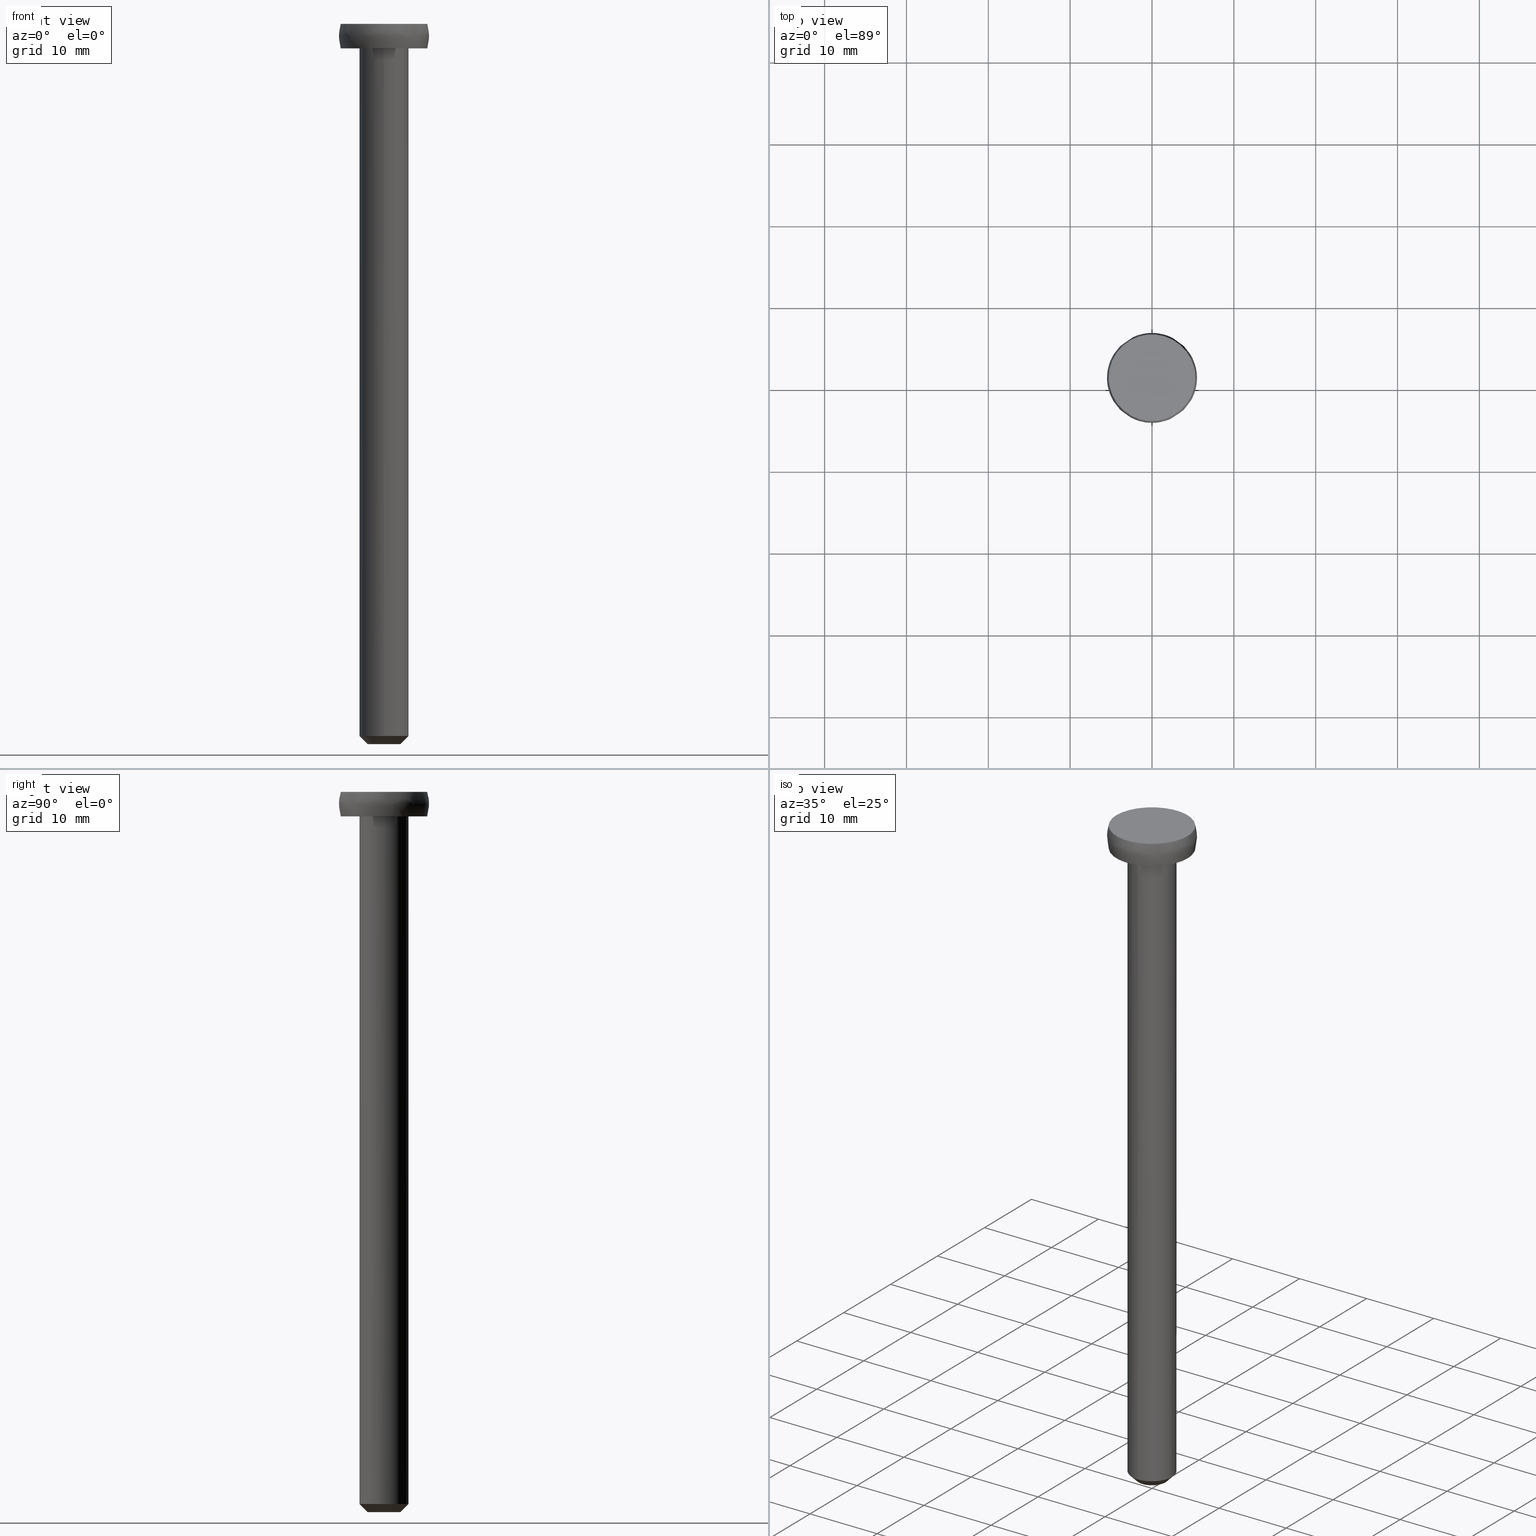
[diagram: canonical four-view strip — front | top / right | iso, engineering-drawing reading convention]
A machine part, canonical four-view strip (front | top / right | iso — engineering-drawing reading convention). The complete STEP part file that produces these views, byte-faithful:
ISO-10303-21;
HEADER;
/****************************************************************
 * Generated by software with PDE/Lib inside                    *
 * PDElib Version 4.4.1-0003, patched  Thursday August 19 11:58 *
 * International Technegroup Inc. (www.iti-oh.com)              *
 ****************************************************************/
FILE_DESCRIPTION((''),'2;1');
FILE_NAME('','2005-04-20T08:41:56',(''),(''),'','CADfix','');
FILE_SCHEMA(('AUTOMOTIVE_DESIGN'));
ENDSEC;
DATA;
#5=APPLICATION_CONTEXT('automotive design');
#6=APPLICATION_PROTOCOL_DEFINITION('Draft International Standard','automotive_design',1998,#5);
#7=PRODUCT_CONTEXT('None',#5,'mechanical');
#8=PRODUCT('shaft','','None',(#7));
#9=PRODUCT_RELATED_PRODUCT_CATEGORY('part','description',(#8));
#10=PRODUCT_DEFINITION_FORMATION('None','None',#8);
#11=PRODUCT_DEFINITION_CONTEXT('part definition',#5,'design');
#12=PRODUCT_DEFINITION('None','None',#10,#11);
#18=(NAMED_UNIT(*)PLANE_ANGLE_UNIT()SI_UNIT($,.RADIAN.));
#19=DIMENSIONAL_EXPONENTS(0.0,0.0,0.0,0.0,0.0,0.0,0.0);
#20=PLANE_ANGLE_MEASURE_WITH_UNIT(PLANE_ANGLE_MEASURE(0.017453292500000),#18);
#24=(CONVERSION_BASED_UNIT('DEGREE',#20)NAMED_UNIT(#19)PLANE_ANGLE_UNIT());
#28=(NAMED_UNIT(*)SI_UNIT($,.STERADIAN.)SOLID_ANGLE_UNIT());
#32=(LENGTH_UNIT()NAMED_UNIT(*)SI_UNIT(.MILLI.,.METRE.));
#34=UNCERTAINTY_MEASURE_WITH_UNIT(LENGTH_MEASURE(0.001000000000000),#32,'DISTANCE_ACCURACY_VALUE','');
#36=(GEOMETRIC_REPRESENTATION_CONTEXT(3)GLOBAL_UNCERTAINTY_ASSIGNED_CONTEXT((#34))GLOBAL_UNIT_ASSIGNED_CONTEXT((#24,#28,#32))REPRESENTATION_CONTEXT('None','None'));
#37=AXIS2_PLACEMENT_3D('',#38,#39,#40);
#38=CARTESIAN_POINT('',(0.0,0.0,0.0));
#39=DIRECTION('',(0.0,0.0,1.0));
#40=DIRECTION('',(1.0,0.0,0.0));
#41=ADVANCED_BREP_SHAPE_REPRESENTATION('',(#37,#544),#36);
#42=PRODUCT_DEFINITION_SHAPE('','',#12);
#43=SHAPE_DEFINITION_REPRESENTATION(#42,#41);
#44=CARTESIAN_POINT('',(-1.924080852527717,0.445575889087603,-0.025000000000000));
#45=CARTESIAN_POINT('',(-1.976970576395369,0.217188071251215,-0.025000000000000));
#46=CARTESIAN_POINT('',(-1.974924798051737,-0.017234907609288,-0.025000000000000));
#47=CARTESIAN_POINT('',(-1.957689890442449,-1.992159705661026,-0.025000000000000));
#48=CARTESIAN_POINT('',(0.017234907609288,-1.974924798051737,-0.025000000000000));
#49=CARTESIAN_POINT('',(1.992159705661026,-1.957689890442449,-0.025000000000000));
#50=CARTESIAN_POINT('',(1.974924798051737,0.017234907609288,-0.025000000000000));
#51=CARTESIAN_POINT('',(1.957689890442449,1.992159705661026,-0.025000000000000));
#52=CARTESIAN_POINT('',(-0.017234907609288,1.974924798051737,-0.025000000000000));
#53=CARTESIAN_POINT('',(-2.947618799710976,0.682605341478825,1.025625000000000));
#54=CARTESIAN_POINT('',(-3.028643848205691,0.332723877508586,1.025625000000000));
#55=CARTESIAN_POINT('',(-3.025509793471032,-0.026403223967268,1.025625000000000));
#56=CARTESIAN_POINT('',(-2.999106569503765,-3.051913017438300,1.025625000000000));
#57=CARTESIAN_POINT('',(0.026403223967268,-3.025509793471032,1.025625000000000));
#58=CARTESIAN_POINT('',(3.051913017438300,-2.999106569503765,1.025625000000000));
#59=CARTESIAN_POINT('',(3.025509793471032,0.026403223967268,1.025625000000000));
#60=CARTESIAN_POINT('',(2.999106569503765,3.051913017438300,1.025625000000000));
#61=CARTESIAN_POINT('',(-0.026403223967268,3.025509793471032,1.025625000000000));
#69=(BOUNDED_SURFACE()B_SPLINE_SURFACE(2,1,((#44,#53),(#45,#54),(#46,#55),(#47,#56),(#48,#57),(#49,#58),(#50,#59),(#51,#60),(#52,#61)),.UNSPECIFIED.,.F.,.F.,.U.)B_SPLINE_SURFACE_WITH_KNOTS((3,2,2,2,3),(2,2),(0.0,0.802083142179262,5.815102780799644,10.828122419420030,15.841142058040409),(0.0,1.0),.UNSPECIFIED.)GEOMETRIC_REPRESENTATION_ITEM()RATIONAL_B_SPLINE_SURFACE(((0.921270302782944,0.921270302782944),(0.953137084989848,0.953137084989848),(1.0,1.0),(0.707106781186548,0.707106781186548),(1.0,1.0),(0.707106781186548,0.707106781186548),(1.0,1.0),(0.707106781186548,0.707106781186548),(1.0,1.0)))REPRESENTATION_ITEM('')SURFACE());
#70=CARTESIAN_POINT('',(-2.922654459458321,0.676824136001583,1.000000000077650));
#71=VERTEX_POINT('',#70);
#72=CARTESIAN_POINT('',(-3.0,0.0,1.0));
#73=VERTEX_POINT('',#72);
#74=CARTESIAN_POINT('',(-2.922654459458320,0.676824136001583,1.000000000077650));
#75=CARTESIAN_POINT('',(-3.0,0.342831482726698,1.0));
#76=CARTESIAN_POINT('',(-3.0,0.0,1.0));
#84=(BOUNDED_CURVE()B_SPLINE_CURVE(2,(#74,#75,#76),.UNSPECIFIED.,.F.,.U.)B_SPLINE_CURVE_WITH_KNOTS((3,3),(0.961422971710747,1.0),.UNSPECIFIED.)CURVE()GEOMETRIC_REPRESENTATION_ITEM()RATIONAL_B_SPLINE_CURVE((0.923556557323127,0.954804200048412,1.0))REPRESENTATION_ITEM(''));
#85=EDGE_CURVE('',#71,#73,#84,.T.);
#86=ORIENTED_EDGE('',*,*,#85,.F.);
#87=CARTESIAN_POINT('',(-1.948436306188818,0.451216091699625,1.708533E-010));
#88=VERTEX_POINT('',#87);
#89=CARTESIAN_POINT('',(-1.948436306188818,0.451216091699625,1.708533E-010));
#90=CARTESIAN_POINT('',(-2.922654459458321,0.676824136001583,1.000000000077650));
#91=QUASI_UNIFORM_CURVE('',1,(#89,#90),.UNSPECIFIED.,.F.,.U.);
#92=EDGE_CURVE('',#88,#71,#91,.T.);
#93=ORIENTED_EDGE('',*,*,#92,.F.);
#94=CARTESIAN_POINT('',(-2.0,0.0,0.0));
#95=VERTEX_POINT('',#94);
#96=CARTESIAN_POINT('',(-2.0,0.0,0.0));
#97=CARTESIAN_POINT('',(-2.0,0.228554322862904,0.0));
#98=CARTESIAN_POINT('',(-1.948436306188819,0.451216091699625,1.708533E-010));
#106=(BOUNDED_CURVE()B_SPLINE_CURVE(2,(#96,#97,#98),.UNSPECIFIED.,.F.,.U.)B_SPLINE_CURVE_WITH_KNOTS((3,3),(0.0,0.038577028457681),.UNSPECIFIED.)CURVE()GEOMETRIC_REPRESENTATION_ITEM()RATIONAL_B_SPLINE_CURVE((1.0,0.954804199851087,0.923556557050272))REPRESENTATION_ITEM(''));
#107=EDGE_CURVE('',#95,#88,#106,.T.);
#108=ORIENTED_EDGE('',*,*,#107,.F.);
#109=CARTESIAN_POINT('',(2.0,0.0,0.0));
#110=VERTEX_POINT('',#109);
#111=CARTESIAN_POINT('',(2.0,0.0,0.0));
#112=CARTESIAN_POINT('',(2.000000000000000,-2.000000000000000,0.0));
#113=CARTESIAN_POINT('',(0.0,-2.0,0.0));
#114=CARTESIAN_POINT('',(-2.000000000000000,-2.000000000000000,0.0));
#115=CARTESIAN_POINT('',(-2.0,0.0,0.0));
#123=(BOUNDED_CURVE()B_SPLINE_CURVE(2,(#111,#112,#113,#114,#115),.UNSPECIFIED.,.F.,.U.)B_SPLINE_CURVE_WITH_KNOTS((3,2,3),(0.500000000000000,0.750000000000000,1.0),.UNSPECIFIED.)CURVE()GEOMETRIC_REPRESENTATION_ITEM()RATIONAL_B_SPLINE_CURVE((1.0,0.707106781186548,1.0,0.707106781186548,1.0))REPRESENTATION_ITEM(''));
#124=EDGE_CURVE('',#110,#95,#123,.T.);
#125=ORIENTED_EDGE('',*,*,#124,.F.);
#126=CARTESIAN_POINT('',(-0.017453072301893,1.999923846293894,1.769353E-010));
#127=VERTEX_POINT('',#126);
#128=CARTESIAN_POINT('',(-0.017453072301893,1.999923846293894,1.769353E-010));
#129=CARTESIAN_POINT('',(-0.008726702945079,2.000000000000000,0.0));
#130=CARTESIAN_POINT('',(0.0,2.0,0.0));
#131=CARTESIAN_POINT('',(2.000000000000000,2.000000000000000,0.0));
#132=CARTESIAN_POINT('',(2.0,0.0,0.0));
#140=(BOUNDED_CURVE()B_SPLINE_CURVE(2,(#128,#129,#130,#131,#132),.UNSPECIFIED.,.F.,.U.)B_SPLINE_CURVE_WITH_KNOTS((3,2,3),(0.248460105435384,0.250000000000000,0.500000000000000),.UNSPECIFIED.)CURVE()GEOMETRIC_REPRESENTATION_ITEM()RATIONAL_B_SPLINE_CURVE((0.996414027568981,0.998195901297345,1.0,0.707106781186548,1.0))REPRESENTATION_ITEM(''));
#141=EDGE_CURVE('',#127,#110,#140,.T.);
#142=ORIENTED_EDGE('',*,*,#141,.F.);
#143=CARTESIAN_POINT('',(-0.026179607927182,2.999885769374393,1.000000000194370));
#144=VERTEX_POINT('',#143);
#145=CARTESIAN_POINT('',(-0.017453072301893,1.999923846293894,1.769353E-010));
#146=CARTESIAN_POINT('',(-0.026179607927182,2.999885769374393,1.000000000194370));
#147=QUASI_UNIFORM_CURVE('',1,(#145,#146),.UNSPECIFIED.,.F.,.U.);
#148=EDGE_CURVE('',#127,#144,#147,.T.);
#149=ORIENTED_EDGE('',*,*,#148,.T.);
#150=CARTESIAN_POINT('',(0.372384006447590,2.976798641450584,1.000000000000000));
#151=VERTEX_POINT('',#150);
#152=CARTESIAN_POINT('',(0.372384006447590,2.976798641450585,1.000000000000000));
#153=CARTESIAN_POINT('',(0.186914782811021,3.000000000000000,1.0));
#154=CARTESIAN_POINT('',(0.0,3.0,1.0));
#155=CARTESIAN_POINT('',(-0.013090053892553,3.0,1.0));
#156=CARTESIAN_POINT('',(-0.026179607927182,2.999885769374393,1.000000000194370));
#164=(BOUNDED_CURVE()B_SPLINE_CURVE(2,(#152,#153,#154,#155,#156),.UNSPECIFIED.,.F.,.U.)B_SPLINE_CURVE_WITH_KNOTS((3,2,3),(0.728526071005719,0.750000000000000,0.751539894502959),.UNSPECIFIED.)CURVE()GEOMETRIC_REPRESENTATION_ITEM()RATIONAL_B_SPLINE_CURVE((0.954005430228960,0.974841727265175,1.0,0.998195901369580,0.996414027711671))REPRESENTATION_ITEM(''));
#165=EDGE_CURVE('',#151,#144,#164,.T.);
#166=ORIENTED_EDGE('',*,*,#165,.F.);
#167=CARTESIAN_POINT('',(3.0,0.0,1.0));
#168=VERTEX_POINT('',#167);
#169=CARTESIAN_POINT('',(3.0,0.0,1.0));
#170=CARTESIAN_POINT('',(3.0,2.648095800077549,1.0));
#171=CARTESIAN_POINT('',(0.372384006447590,2.976798641450584,1.000000000000000));
#179=(BOUNDED_CURVE()B_SPLINE_CURVE(2,(#169,#170,#171),.UNSPECIFIED.,.F.,.U.)B_SPLINE_CURVE_WITH_KNOTS((3,3),(0.500000000000000,0.728526071005719),.UNSPECIFIED.)CURVE()GEOMETRIC_REPRESENTATION_ITEM()RATIONAL_B_SPLINE_CURVE((1.0,0.732265053921373,0.954005430228960))REPRESENTATION_ITEM(''));
#180=EDGE_CURVE('',#168,#151,#179,.T.);
#181=ORIENTED_EDGE('',*,*,#180,.F.);
#182=CARTESIAN_POINT('',(-0.026179606802574,-2.999885769189831,1.000000000000000));
#183=VERTEX_POINT('',#182);
#184=CARTESIAN_POINT('',(-0.026179606802574,-2.999885769189831,1.000000000000000));
#185=CARTESIAN_POINT('',(-0.013090052769574,-3.000000000000000,1.0));
#186=CARTESIAN_POINT('',(0.0,-3.0,1.0));
#187=CARTESIAN_POINT('',(3.0,-3.0,1.0));
#188=CARTESIAN_POINT('',(3.0,0.0,1.0));
#196=(BOUNDED_CURVE()B_SPLINE_CURVE(2,(#184,#185,#186,#187,#188),.UNSPECIFIED.,.F.,.U.)B_SPLINE_CURVE_WITH_KNOTS((3,2,3),(0.248460105628908,0.250000000000000,0.500000000000000),.UNSPECIFIED.)CURVE()GEOMETRIC_REPRESENTATION_ITEM()RATIONAL_B_SPLINE_CURVE((0.996414028016849,0.998195901524072,1.0,0.707106781186548,1.0))REPRESENTATION_ITEM(''));
#197=EDGE_CURVE('',#183,#168,#196,.T.);
#198=ORIENTED_EDGE('',*,*,#197,.F.);
#199=CARTESIAN_POINT('',(-3.0,0.0,1.0));
#200=CARTESIAN_POINT('',(-3.000000000000000,-2.973933631175326,1.0));
#201=CARTESIAN_POINT('',(-0.026179606802574,-2.999885769189830,1.000000000000000));
#209=(BOUNDED_CURVE()B_SPLINE_CURVE(2,(#199,#200,#201),.UNSPECIFIED.,.F.,.U.)B_SPLINE_CURVE_WITH_KNOTS((3,3),(0.0,0.248460105628908),.UNSPECIFIED.)CURVE()GEOMETRIC_REPRESENTATION_ITEM()RATIONAL_B_SPLINE_CURVE((1.0,0.708910879662475,0.996414028016849))REPRESENTATION_ITEM(''));
#210=EDGE_CURVE('',#73,#183,#209,.T.);
#211=ORIENTED_EDGE('',*,*,#210,.F.);
#212=EDGE_LOOP('',(#86,#93,#108,#125,#142,#149,#166,#181,#198,#211));
#213=FACE_OUTER_BOUND('',#212,.T.);
#214=ADVANCED_FACE('',(#213),#69,.T.);
#215=CARTESIAN_POINT('',(-0.017234907609288,1.974924798051737,-0.025000000000000));
#216=CARTESIAN_POINT('',(-1.573060676506091,1.961347312261119,-0.025000000000000));
#217=CARTESIAN_POINT('',(-1.924080852527717,0.445575889087603,-0.025000000000000));
#218=CARTESIAN_POINT('',(-0.026403223967268,3.025509793471032,1.025625000000000));
#219=CARTESIAN_POINT('',(-2.409869219925946,3.004709600840533,1.025625000000000));
#220=CARTESIAN_POINT('',(-2.947618799710976,0.682605341478825,1.025625000000000));
#228=(BOUNDED_SURFACE()B_SPLINE_SURFACE(2,1,((#215,#218),(#216,#219),(#217,#220)),.UNSPECIFIED.,.F.,.F.,.U.)B_SPLINE_SURFACE_WITH_KNOTS((3,3),(2,2),(0.0,4.192521827015828),(0.0,1.0),.UNSPECIFIED.)GEOMETRIC_REPRESENTATION_ITEM()RATIONAL_B_SPLINE_SURFACE(((1.0,1.0),(0.753969696196700,0.753969696196700),(0.921270302782944,0.921270302782944)))REPRESENTATION_ITEM('')SURFACE());
#229=CARTESIAN_POINT('',(-0.026179607927182,2.999885769374393,1.000000000194370));
#230=CARTESIAN_POINT('',(-2.389459254875564,2.979261737894684,1.0));
#231=CARTESIAN_POINT('',(-2.922654459458321,0.676824136001583,1.000000000077650));
#239=(BOUNDED_CURVE()B_SPLINE_CURVE(2,(#229,#230,#231),.UNSPECIFIED.,.F.,.U.)B_SPLINE_CURVE_WITH_KNOTS((3,3),(0.751539894502959,0.961422971710748),.UNSPECIFIED.)CURVE()GEOMETRIC_REPRESENTATION_ITEM()RATIONAL_B_SPLINE_CURVE((0.996414027711672,0.753549905657335,0.923556557323128))REPRESENTATION_ITEM(''));
#240=EDGE_CURVE('',#144,#71,#239,.T.);
#241=ORIENTED_EDGE('',*,*,#240,.F.);
#242=ORIENTED_EDGE('',*,*,#148,.F.);
#243=CARTESIAN_POINT('',(-1.948436306188819,0.451216091699625,1.708533E-010));
#244=CARTESIAN_POINT('',(-1.592972835039866,1.986174491391728,0.0));
#245=CARTESIAN_POINT('',(-0.017453072301893,1.999923846293894,1.769353E-010));
#253=(BOUNDED_CURVE()B_SPLINE_CURVE(2,(#243,#244,#245),.UNSPECIFIED.,.F.,.U.)B_SPLINE_CURVE_WITH_KNOTS((3,3),(0.038577028457681,0.248460105435384),.UNSPECIFIED.)CURVE()GEOMETRIC_REPRESENTATION_ITEM()RATIONAL_B_SPLINE_CURVE((0.923556557050271,0.753549905902174,0.996414027568981))REPRESENTATION_ITEM(''));
#254=EDGE_CURVE('',#88,#127,#253,.T.);
#255=ORIENTED_EDGE('',*,*,#254,.F.);
#256=ORIENTED_EDGE('',*,*,#92,.T.);
#257=EDGE_LOOP('',(#241,#242,#255,#256));
#258=FACE_OUTER_BOUND('',#257,.T.);
#259=ADVANCED_FACE('',(#258),#228,.T.);
#260=CARTESIAN_POINT('',(0.372384006239488,2.976798641476615,87.100000000000023));
#261=CARTESIAN_POINT('',(3.023198491507334,2.645193774399663,87.100000000000023));
#262=CARTESIAN_POINT('',(2.999885769192513,-0.026179606495122,87.100000000000023));
#263=CARTESIAN_POINT('',(2.973706162697392,-3.026065375687634,87.100000000000023));
#264=CARTESIAN_POINT('',(-0.026179606495122,-2.999885769192513,87.100000000000023));
#265=CARTESIAN_POINT('',(0.372384006239488,2.976798641476615,-1.152500000000004));
#266=CARTESIAN_POINT('',(3.023198491507334,2.645193774399663,-1.152500000000003));
#267=CARTESIAN_POINT('',(2.999885769192513,-0.026179606495122,-1.152500000000003));
#268=CARTESIAN_POINT('',(2.973706162697392,-3.026065375687634,-1.152500000000003));
#269=CARTESIAN_POINT('',(-0.026179606495122,-2.999885769192513,-1.152500000000003));
#277=(BOUNDED_SURFACE()B_SPLINE_SURFACE(2,1,((#260,#265),(#261,#266),(#262,#267),(#263,#268),(#264,#269)),.UNSPECIFIED.,.F.,.F.,.U.)B_SPLINE_SURFACE_WITH_KNOTS((3,2,3),(2,2),(0.0,4.572917728598967,9.543480477076107),(0.0,88.252500000000040),.UNSPECIFIED.)GEOMETRIC_REPRESENTATION_ITEM()RATIONAL_B_SPLINE_SURFACE(((0.956886118190660,0.956886118190660),(0.730538238691624,0.730538238691624),(1.0,1.0),(0.707106781186548,0.707106781186548),(1.0,1.0)))REPRESENTATION_ITEM('')SURFACE());
#278=CARTESIAN_POINT('',(0.372384006388623,2.976798641457960,85.0));
#279=VERTEX_POINT('',#278);
#280=CARTESIAN_POINT('',(3.0,0.0,85.0));
#281=VERTEX_POINT('',#280);
#282=CARTESIAN_POINT('',(0.372384006388623,2.976798641457960,85.0));
#283=CARTESIAN_POINT('',(3.000000000000000,2.648095800183283,85.0));
#284=CARTESIAN_POINT('',(3.0,0.0,85.0));
#292=(BOUNDED_CURVE()B_SPLINE_CURVE(2,(#282,#283,#284),.UNSPECIFIED.,.F.,.U.)B_SPLINE_CURVE_WITH_KNOTS((3,3),(0.271473928987599,0.500000000000000),.UNSPECIFIED.)CURVE()GEOMETRIC_REPRESENTATION_ITEM()RATIONAL_B_SPLINE_CURVE((0.954005430241926,0.732265053913545,1.0))REPRESENTATION_ITEM(''));
#293=EDGE_CURVE('',#279,#281,#292,.T.);
#294=ORIENTED_EDGE('',*,*,#293,.T.);
#295=CARTESIAN_POINT('',(-0.026179606832162,-2.999885769189572,85.0));
#296=VERTEX_POINT('',#295);
#297=CARTESIAN_POINT('',(3.0,0.0,85.0));
#298=CARTESIAN_POINT('',(3.0,-3.0,85.0));
#299=CARTESIAN_POINT('',(0.0,-3.0,85.0));
#300=CARTESIAN_POINT('',(-0.013090052799159,-3.000000000000000,85.000000000000014));
#301=CARTESIAN_POINT('',(-0.026179606832162,-2.999885769189572,85.0));
#309=(BOUNDED_CURVE()B_SPLINE_CURVE(2,(#297,#298,#299,#300,#301),.UNSPECIFIED.,.F.,.U.)B_SPLINE_CURVE_WITH_KNOTS((3,2,3),(0.500000000000000,0.750000000000000,0.751539894374566),.UNSPECIFIED.)CURVE()GEOMETRIC_REPRESENTATION_ITEM()RATIONAL_B_SPLINE_CURVE((1.0,0.707106781186548,1.0,0.998195901520002,0.996414028008809))REPRESENTATION_ITEM(''));
#310=EDGE_CURVE('',#281,#296,#309,.T.);
#311=ORIENTED_EDGE('',*,*,#310,.T.);
#312=CARTESIAN_POINT('',(-0.026179606832162,-2.999885769189572,85.0));
#313=CARTESIAN_POINT('',(-0.026179606802574,-2.999885769189831,1.000000000000000));
#314=QUASI_UNIFORM_CURVE('',1,(#312,#313),.UNSPECIFIED.,.F.,.U.);
#315=EDGE_CURVE('',#296,#183,#314,.T.);
#316=ORIENTED_EDGE('',*,*,#315,.T.);
#317=ORIENTED_EDGE('',*,*,#197,.T.);
#318=ORIENTED_EDGE('',*,*,#180,.T.);
#319=CARTESIAN_POINT('',(0.372384006388623,2.976798641457960,85.0));
#320=CARTESIAN_POINT('',(0.372384006447590,2.976798641450584,1.000000000000000));
#321=QUASI_UNIFORM_CURVE('',1,(#319,#320),.UNSPECIFIED.,.F.,.U.);
#322=EDGE_CURVE('',#279,#151,#321,.T.);
#323=ORIENTED_EDGE('',*,*,#322,.F.);
#324=EDGE_LOOP('',(#294,#311,#316,#317,#318,#323));
#325=FACE_OUTER_BOUND('',#324,.T.);
#326=ADVANCED_FACE('',(#325),#277,.T.);
#327=CARTESIAN_POINT('',(-0.026179606495122,-2.999885769192513,87.100000000000023));
#328=CARTESIAN_POINT('',(-3.026065375687634,-2.973706162697392,87.100000000000023));
#329=CARTESIAN_POINT('',(-2.999885769192513,0.026179606495122,87.100000000000023));
#330=CARTESIAN_POINT('',(-2.973706162697392,3.026065375687634,87.100000000000023));
#331=CARTESIAN_POINT('',(0.026179606495122,2.999885769192513,87.100000000000023));
#332=CARTESIAN_POINT('',(0.199950476874521,2.998369293780826,87.100000000000023));
#333=CARTESIAN_POINT('',(0.372384006239488,2.976798641476615,87.100000000000023));
#334=CARTESIAN_POINT('',(-0.026179606495122,-2.999885769192513,-1.152500000000003));
#335=CARTESIAN_POINT('',(-3.026065375687634,-2.973706162697392,-1.152500000000003));
#336=CARTESIAN_POINT('',(-2.999885769192513,0.026179606495122,-1.152500000000003));
#337=CARTESIAN_POINT('',(-2.973706162697392,3.026065375687634,-1.152500000000003));
#338=CARTESIAN_POINT('',(0.026179606495122,2.999885769192513,-1.152500000000003));
#339=CARTESIAN_POINT('',(0.199950476874521,2.998369293780826,-1.152500000000003));
#340=CARTESIAN_POINT('',(0.372384006239488,2.976798641476615,-1.152500000000004));
#348=(BOUNDED_SURFACE()B_SPLINE_SURFACE(2,1,((#327,#334),(#328,#335),(#329,#336),(#330,#337),(#331,#338),(#332,#339),(#333,#340)),.UNSPECIFIED.,.F.,.F.,.U.)B_SPLINE_SURFACE_WITH_KNOTS((3,2,2,3),(2,2),(0.0,4.970562748477139,9.941125496954278,10.338770516832451),(0.0,88.252500000000040),.UNSPECIFIED.)GEOMETRIC_REPRESENTATION_ITEM()RATIONAL_B_SPLINE_SURFACE(((1.0,1.0),(0.707106781186548,0.707106781186548),(1.0,1.0),(0.707106781186548,0.707106781186548),(1.0,1.0),(0.976568542494924,0.976568542494924),(0.956886118190660,0.956886118190660)))REPRESENTATION_ITEM('')SURFACE());
#349=CARTESIAN_POINT('',(-3.0,0.0,85.0));
#350=VERTEX_POINT('',#349);
#351=CARTESIAN_POINT('',(-3.0,0.0,85.0));
#352=CARTESIAN_POINT('',(-3.0,3.0,85.0));
#353=CARTESIAN_POINT('',(0.0,3.0,85.0));
#354=CARTESIAN_POINT('',(0.186914782751365,3.000000000000001,85.0));
#355=CARTESIAN_POINT('',(0.372384006388623,2.976798641457961,85.0));
#363=(BOUNDED_CURVE()B_SPLINE_CURVE(2,(#351,#352,#353,#354,#355),.UNSPECIFIED.,.F.,.U.)B_SPLINE_CURVE_WITH_KNOTS((3,2,3),(0.0,0.250000000000000,0.271473928987599),.UNSPECIFIED.)CURVE()GEOMETRIC_REPRESENTATION_ITEM()RATIONAL_B_SPLINE_CURVE((1.0,0.707106781186548,1.0,0.974841727273002,0.954005430241926))REPRESENTATION_ITEM(''));
#364=EDGE_CURVE('',#350,#279,#363,.T.);
#365=ORIENTED_EDGE('',*,*,#364,.T.);
#366=ORIENTED_EDGE('',*,*,#322,.T.);
#367=ORIENTED_EDGE('',*,*,#165,.T.);
#368=ORIENTED_EDGE('',*,*,#240,.T.);
#369=ORIENTED_EDGE('',*,*,#85,.T.);
#370=ORIENTED_EDGE('',*,*,#210,.T.);
#371=ORIENTED_EDGE('',*,*,#315,.F.);
#372=CARTESIAN_POINT('',(-0.026179606832162,-2.999885769189572,85.000000000000014));
#373=CARTESIAN_POINT('',(-3.000000000000000,-2.973933631116660,85.0));
#374=CARTESIAN_POINT('',(-3.0,0.0,85.0));
#382=(BOUNDED_CURVE()B_SPLINE_CURVE(2,(#372,#373,#374),.UNSPECIFIED.,.F.,.U.)B_SPLINE_CURVE_WITH_KNOTS((3,3),(0.751539894374567,1.0),.UNSPECIFIED.)CURVE()GEOMETRIC_REPRESENTATION_ITEM()RATIONAL_B_SPLINE_CURVE((0.996414028008807,0.708910879666546,1.0))REPRESENTATION_ITEM(''));
#383=EDGE_CURVE('',#296,#350,#382,.T.);
#384=ORIENTED_EDGE('',*,*,#383,.T.);
#385=EDGE_LOOP('',(#365,#366,#367,#368,#369,#370,#371,#384));
#386=FACE_OUTER_BOUND('',#385,.T.);
#387=ADVANCED_FACE('',(#386),#348,.T.);
#388=CARTESIAN_POINT('',(5.820123029288085,-5.820123029288009,85.0));
#389=CARTESIAN_POINT('',(-5.820123313146373,-5.820123029288009,85.0));
#390=CARTESIAN_POINT('',(5.820123029288085,5.820123313146296,85.0));
#391=CARTESIAN_POINT('',(-5.820123313146373,5.820123313146296,85.0));
#392=B_SPLINE_SURFACE_WITH_KNOTS('',1,1,((#388,#390),(#389,#391)),.UNSPECIFIED.,.F.,.F.,.U.,(2,2),(2,2),(0.0,11.640246342434461),(0.0,11.640246342434310),.UNSPECIFIED.);
#393=CARTESIAN_POINT('',(-5.291502000000000,0.0,85.0));
#394=VERTEX_POINT('',#393);
#395=CARTESIAN_POINT('',(5.291502000000000,0.0,85.0));
#396=VERTEX_POINT('',#395);
#397=CARTESIAN_POINT('',(-5.291502000000000,0.0,85.0));
#398=CARTESIAN_POINT('',(-5.291502000000000,5.291502000000000,85.0));
#399=CARTESIAN_POINT('',(0.0,5.291502000000000,85.0));
#400=CARTESIAN_POINT('',(5.291502000000000,5.291502000000000,85.0));
#401=CARTESIAN_POINT('',(5.291502000000000,0.0,85.0));
#409=(BOUNDED_CURVE()B_SPLINE_CURVE(2,(#397,#398,#399,#400,#401),.UNSPECIFIED.,.F.,.U.)B_SPLINE_CURVE_WITH_KNOTS((3,2,3),(0.0,0.250000000000000,0.500000000000000),.UNSPECIFIED.)CURVE()GEOMETRIC_REPRESENTATION_ITEM()RATIONAL_B_SPLINE_CURVE((1.0,0.707106781186548,1.0,0.707106781186548,1.0))REPRESENTATION_ITEM(''));
#410=EDGE_CURVE('',#394,#396,#409,.T.);
#411=ORIENTED_EDGE('',*,*,#410,.T.);
#412=CARTESIAN_POINT('',(5.291502000000000,0.0,85.0));
#413=CARTESIAN_POINT('',(5.291502000000000,-5.291502000000000,85.0));
#414=CARTESIAN_POINT('',(0.0,-5.291502000000000,85.0));
#415=CARTESIAN_POINT('',(-5.291502000000000,-5.291502000000000,85.0));
#416=CARTESIAN_POINT('',(-5.291502000000000,0.0,85.0));
#424=(BOUNDED_CURVE()B_SPLINE_CURVE(2,(#412,#413,#414,#415,#416),.UNSPECIFIED.,.F.,.U.)B_SPLINE_CURVE_WITH_KNOTS((3,2,3),(0.500000000000000,0.750000000000000,1.0),.UNSPECIFIED.)CURVE()GEOMETRIC_REPRESENTATION_ITEM()RATIONAL_B_SPLINE_CURVE((1.0,0.707106781186548,1.0,0.707106781186548,1.0))REPRESENTATION_ITEM(''));
#425=EDGE_CURVE('',#396,#394,#424,.T.);
#426=ORIENTED_EDGE('',*,*,#425,.T.);
#427=EDGE_LOOP('',(#411,#426));
#428=FACE_OUTER_BOUND('',#427,.T.);
#429=ORIENTED_EDGE('',*,*,#310,.F.);
#430=ORIENTED_EDGE('',*,*,#293,.F.);
#431=ORIENTED_EDGE('',*,*,#364,.F.);
#432=ORIENTED_EDGE('',*,*,#383,.F.);
#433=EDGE_LOOP('',(#429,#430,#431,#432));
#434=FACE_BOUND('',#433,.T.);
#435=ADVANCED_FACE('',(#428,#434),#392,.T.);
#436=CARTESIAN_POINT('',(2.199799992247224,-2.199796176600517,0.0));
#437=CARTESIAN_POINT('',(-2.199800099535584,-2.199796176600517,0.0));
#438=CARTESIAN_POINT('',(2.199799992247224,2.199719894576134,0.0));
#439=CARTESIAN_POINT('',(-2.199800099535584,2.199719894576134,0.0));
#440=B_SPLINE_SURFACE_WITH_KNOTS('',1,1,((#436,#438),(#437,#439)),.UNSPECIFIED.,.F.,.F.,.U.,(2,2),(2,2),(0.0,4.399600091782808),(0.0,4.399516071176651),.UNSPECIFIED.);
#441=ORIENTED_EDGE('',*,*,#107,.T.);
#442=ORIENTED_EDGE('',*,*,#254,.T.);
#443=ORIENTED_EDGE('',*,*,#141,.T.);
#444=ORIENTED_EDGE('',*,*,#124,.T.);
#445=EDGE_LOOP('',(#441,#442,#443,#444));
#446=FACE_OUTER_BOUND('',#445,.T.);
#447=ADVANCED_FACE('',(#446),#440,.T.);
#448=CARTESIAN_POINT('',(-5.820123029288085,-5.820123029288009,88.0));
#449=CARTESIAN_POINT('',(5.820123313146373,-5.820123029288009,88.0));
#450=CARTESIAN_POINT('',(-5.820123029288085,5.820123313146296,88.0));
#451=CARTESIAN_POINT('',(5.820123313146373,5.820123313146296,88.0));
#452=B_SPLINE_SURFACE_WITH_KNOTS('',1,1,((#448,#450),(#449,#451)),.UNSPECIFIED.,.F.,.F.,.U.,(2,2),(2,2),(0.0,11.640246342434461),(0.0,11.640246342434310),.UNSPECIFIED.);
#453=CARTESIAN_POINT('',(5.291502000000000,0.0,88.0));
#454=VERTEX_POINT('',#453);
#455=CARTESIAN_POINT('',(-5.291502000000000,0.0,88.0));
#456=VERTEX_POINT('',#455);
#457=CARTESIAN_POINT('',(5.291502000000000,0.0,88.0));
#458=CARTESIAN_POINT('',(5.291502000000000,-5.291502000000000,88.0));
#459=CARTESIAN_POINT('',(0.0,-5.291502000000000,88.0));
#460=CARTESIAN_POINT('',(-5.291502000000000,-5.291502000000000,88.0));
#461=CARTESIAN_POINT('',(-5.291502000000000,0.0,88.0));
#469=(BOUNDED_CURVE()B_SPLINE_CURVE(2,(#457,#458,#459,#460,#461),.UNSPECIFIED.,.F.,.U.)B_SPLINE_CURVE_WITH_KNOTS((3,2,3),(0.500000000000000,0.750000000000000,1.0),.UNSPECIFIED.)CURVE()GEOMETRIC_REPRESENTATION_ITEM()RATIONAL_B_SPLINE_CURVE((1.0,0.707106781186548,1.0,0.707106781186548,1.0))REPRESENTATION_ITEM(''));
#470=EDGE_CURVE('',#454,#456,#469,.T.);
#471=ORIENTED_EDGE('',*,*,#470,.F.);
#472=CARTESIAN_POINT('',(-5.291502000000000,0.0,88.0));
#473=CARTESIAN_POINT('',(-5.291502000000000,5.291502000000000,88.0));
#474=CARTESIAN_POINT('',(0.0,5.291502000000000,88.0));
#475=CARTESIAN_POINT('',(5.291502000000000,5.291502000000000,88.0));
#476=CARTESIAN_POINT('',(5.291502000000000,0.0,88.0));
#484=(BOUNDED_CURVE()B_SPLINE_CURVE(2,(#472,#473,#474,#475,#476),.UNSPECIFIED.,.F.,.U.)B_SPLINE_CURVE_WITH_KNOTS((3,2,3),(0.0,0.250000000000000,0.500000000000000),.UNSPECIFIED.)CURVE()GEOMETRIC_REPRESENTATION_ITEM()RATIONAL_B_SPLINE_CURVE((1.0,0.707106781186548,1.0,0.707106781186548,1.0))REPRESENTATION_ITEM(''));
#485=EDGE_CURVE('',#456,#454,#484,.T.);
#486=ORIENTED_EDGE('',*,*,#485,.F.);
#487=EDGE_LOOP('',(#471,#486));
#488=FACE_OUTER_BOUND('',#487,.T.);
#489=ADVANCED_FACE('',(#488),#452,.T.);
#490=CARTESIAN_POINT('',(-3.164920383337690,3.164920383337686,89.696335078534034));
#491=CARTESIAN_POINT('',(-2.958400293070957,3.944533724094605,89.128874388254502));
#492=CARTESIAN_POINT('',(-1.308441110860389,5.233764443441549,88.190476190476176));
#493=CARTESIAN_POINT('',(1.308441110860386,5.233764443441549,88.190476190476204));
#494=CARTESIAN_POINT('',(2.958400293070954,3.944533724094605,89.128874388254502));
#495=CARTESIAN_POINT('',(3.164920383337686,3.164920383337686,89.696335078534034));
#496=CARTESIAN_POINT('',(-3.944533724094610,2.958400293070954,89.128874388254502));
#497=CARTESIAN_POINT('',(-3.925323332581163,3.925323332581160,88.190476190476176));
#498=CARTESIAN_POINT('',(-1.943729238641478,5.831187715924432,86.340836012861786));
#499=CARTESIAN_POINT('',(1.943729238641479,5.831187715924432,86.340836012861786));
#500=CARTESIAN_POINT('',(3.925323332581160,3.925323332581160,88.190476190476204));
#501=CARTESIAN_POINT('',(3.944533724094605,2.958400293070954,89.128874388254502));
#502=CARTESIAN_POINT('',(-5.233764443441549,1.308441110860386,88.190476190476176));
#503=CARTESIAN_POINT('',(-5.831187715924437,1.943729238641478,86.340836012861786));
#504=CARTESIAN_POINT('',(-3.778123707609380,3.778123707609387,81.0));
#505=CARTESIAN_POINT('',(3.778123707609390,3.778123707609387,81.000000000000014));
#506=CARTESIAN_POINT('',(5.831187715924432,1.943729238641478,86.340836012861786));
#507=CARTESIAN_POINT('',(5.233764443441546,1.308441110860386,88.190476190476204));
#508=CARTESIAN_POINT('',(-5.233764443441549,-1.308441110860388,88.190476190476176));
#509=CARTESIAN_POINT('',(-5.831187715924437,-1.943729238641478,86.340836012861786));
#510=CARTESIAN_POINT('',(-3.778123707609380,-3.778123707609382,81.0));
#511=CARTESIAN_POINT('',(3.778123707609390,-3.778123707609382,81.0));
#512=CARTESIAN_POINT('',(5.831187715924432,-1.943729238641478,86.340836012861786));
#513=CARTESIAN_POINT('',(5.233764443441546,-1.308441110860388,88.190476190476204));
#514=CARTESIAN_POINT('',(-3.944533724094610,-2.958400293070957,89.128874388254502));
#515=CARTESIAN_POINT('',(-3.925323332581163,-3.925323332581163,88.190476190476176));
#516=CARTESIAN_POINT('',(-1.943729238641478,-5.831187715924437,86.340836012861786));
#517=CARTESIAN_POINT('',(1.943729238641479,-5.831187715924437,86.340836012861786));
#518=CARTESIAN_POINT('',(3.925323332581160,-3.925323332581163,88.190476190476176));
#519=CARTESIAN_POINT('',(3.944533724094605,-2.958400293070957,89.128874388254502));
#520=CARTESIAN_POINT('',(-3.164920383337690,-3.164920383337690,89.696335078534034));
#521=CARTESIAN_POINT('',(-2.958400293070957,-3.944533724094608,89.128874388254502));
#522=CARTESIAN_POINT('',(-1.308441110860389,-5.233764443441549,88.190476190476176));
#523=CARTESIAN_POINT('',(1.308441110860386,-5.233764443441549,88.190476190476176));
#524=CARTESIAN_POINT('',(2.958400293070954,-3.944533724094608,89.128874388254502));
#525=CARTESIAN_POINT('',(3.164920383337686,-3.164920383337690,89.696335078534034));
#533=(BOUNDED_SURFACE()B_SPLINE_SURFACE(2,2,((#490,#496,#502,#508,#514,#520),(#491,#497,#503,#509,#515,#521),(#492,#498,#504,#510,#516,#522),(#493,#499,#505,#511,#517,#523),(#494,#500,#506,#512,#518,#524),(#495,#501,#507,#513,#519,#525)),.UNSPECIFIED.,.F.,.F.,.U.)B_SPLINE_SURFACE_WITH_KNOTS((3,1,1,1,3),(3,1,1,1,3),(0.0,6.113777933931729,12.227555867863460,18.341333801795191,24.455111735726920),(0.0,6.113777933931729,12.227555867863460,18.341333801795191,24.455111735726920),.UNSPECIFIED.)GEOMETRIC_REPRESENTATION_ITEM()RATIONAL_B_SPLINE_SURFACE(((4.775000000000025,3.831250000000019,2.887500000000013,2.887500000000013,3.831250000000019,4.775000000000025),(3.831250000000019,2.887500000000013,1.943750000000006,1.943750000000006,2.887500000000013,3.831250000000019),(2.887500000000013,1.943750000000006,1.0,1.0,1.943750000000006,2.887500000000013),(2.887500000000013,1.943750000000006,1.0,1.0,1.943750000000006,2.887500000000013),(3.831250000000019,2.887500000000013,1.943750000000006,1.943750000000006,2.887500000000013,3.831250000000019),(4.775000000000025,3.831250000000019,2.887500000000013,2.887500000000013,3.831250000000019,4.775000000000025)))REPRESENTATION_ITEM('')SURFACE());
#534=ORIENTED_EDGE('',*,*,#410,.F.);
#535=ORIENTED_EDGE('',*,*,#425,.F.);
#536=EDGE_LOOP('',(#534,#535));
#537=FACE_OUTER_BOUND('',#536,.T.);
#538=ORIENTED_EDGE('',*,*,#485,.T.);
#539=ORIENTED_EDGE('',*,*,#470,.T.);
#540=EDGE_LOOP('',(#538,#539));
#541=FACE_BOUND('',#540,.T.);
#542=ADVANCED_FACE('',(#537,#541),#533,.T.);
#543=CLOSED_SHELL('',(#214,#259,#326,#387,#435,#447,#489,#542));
#544=MANIFOLD_SOLID_BREP('shaft',#543);
#550=(NAMED_UNIT(*)PLANE_ANGLE_UNIT()SI_UNIT($,.RADIAN.));
#551=DIMENSIONAL_EXPONENTS(0.0,0.0,0.0,0.0,0.0,0.0,0.0);
#552=PLANE_ANGLE_MEASURE_WITH_UNIT(PLANE_ANGLE_MEASURE(0.017453292500000),#550);
#556=(CONVERSION_BASED_UNIT('DEGREE',#552)NAMED_UNIT(#551)PLANE_ANGLE_UNIT());
#560=(NAMED_UNIT(*)SI_UNIT($,.STERADIAN.)SOLID_ANGLE_UNIT());
#564=(LENGTH_UNIT()NAMED_UNIT(*)SI_UNIT(.MILLI.,.METRE.));
#566=UNCERTAINTY_MEASURE_WITH_UNIT(LENGTH_MEASURE(0.001000000000000),#564,'DISTANCE_ACCURACY_VALUE','');
#568=(GEOMETRIC_REPRESENTATION_CONTEXT(3)GLOBAL_UNCERTAINTY_ASSIGNED_CONTEXT((#566))GLOBAL_UNIT_ASSIGNED_CONTEXT((#556,#560,#564))REPRESENTATION_CONTEXT('','3D'));
ENDSEC;
END-ISO-10303-21;
